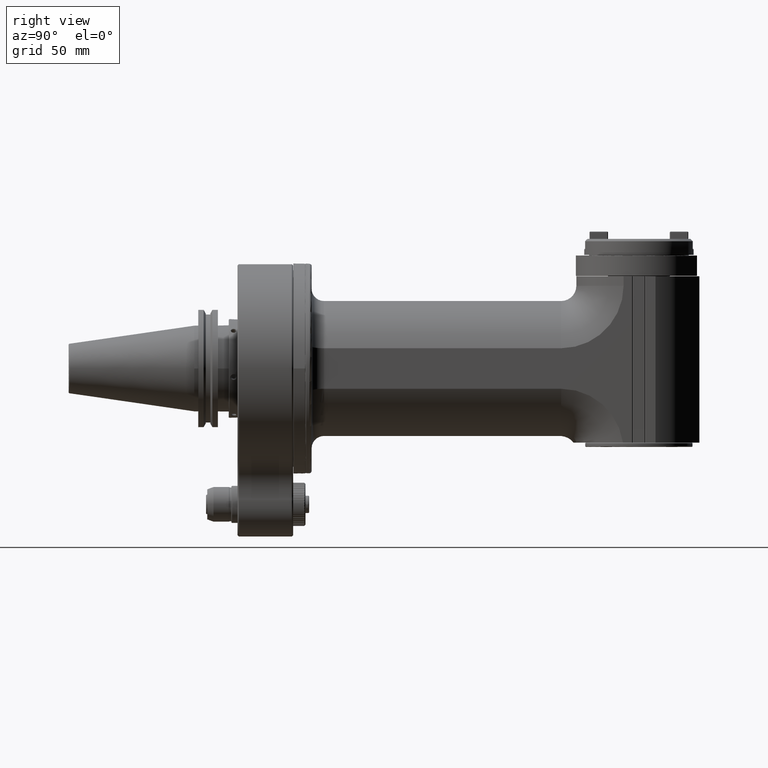
[diagram: clean part render]
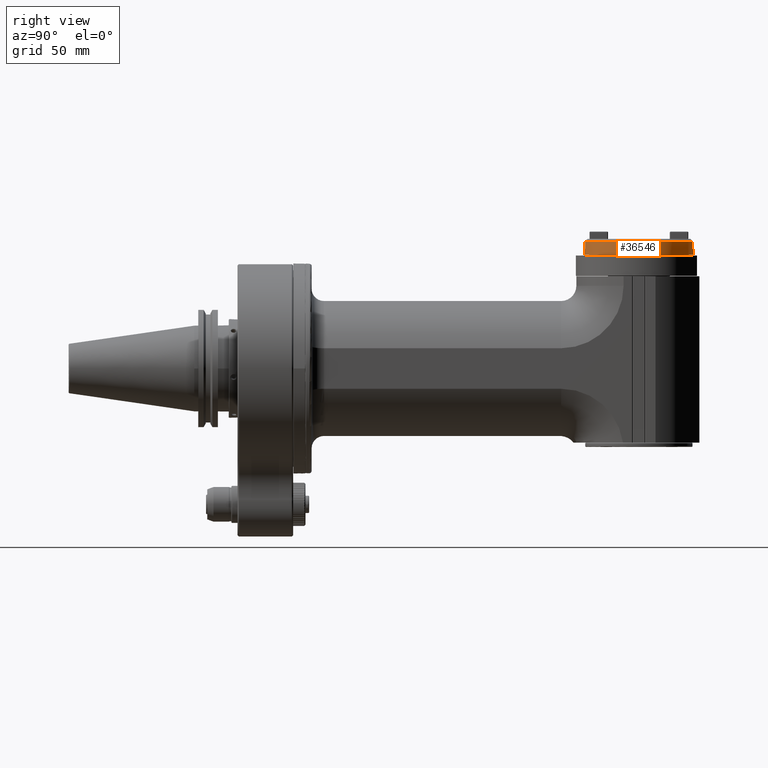
[diagram: same view with one face highlighted and labeled with its STEP entity id]
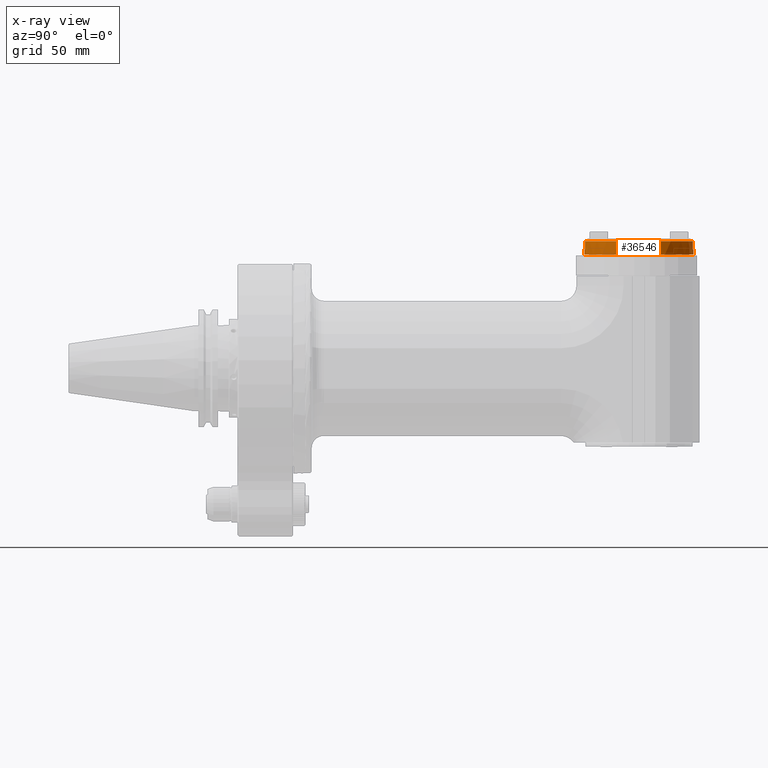
[diagram: x-ray of the same camera — body ghosted, the highlighted face saturated]
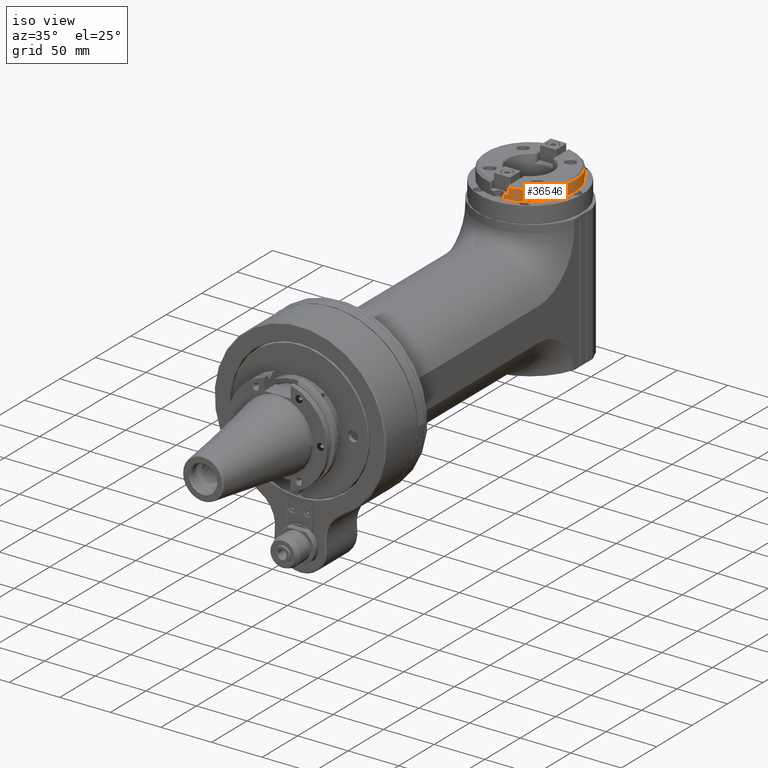
[diagram: same view with one face highlighted and labeled with its STEP entity id]
A machine part, right view. The second image highlights one B-rep face of the part: STEP entity #36546.
The next image is the same camera in x-ray: the body ghosted, the highlighted face saturated — about 0% of this face is hidden behind the body in this view.
A second angle (iso view) of the same face is appended — the face is thin or edge-on in the first view.
In plain terms, the highlighted cylindrical surface (partial cylindrical patch) has radius 44.5 mm, axis along (0, -0, -1).
Its self-contained STEP definition (entity closure, byte-faithful):
#2994=LINE('',#58843,#6284);
#2996=LINE('',#58859,#6286);
#2997=LINE('',#58864,#6287);
#2998=LINE('',#58868,#6288);
#6284=VECTOR('',#45735,0.177165354330709);
#6286=VECTOR('',#45741,0.177165354330709);
#6287=VECTOR('',#45746,0.255905511811024);
#6288=VECTOR('',#45749,0.255905511811024);
#7860=CYLINDRICAL_SURFACE('',#39031,1.75196850393701);
#9340=FACE_OUTER_BOUND('',#11563,.T.);
#11563=EDGE_LOOP('',(#28040,#28041,#28042,#28043,#28044,#28045,#28046,#28047));
#13259=CIRCLE('',#39032,1.75196850393701);
#13260=CIRCLE('',#39033,1.75196850393701);
#13261=CIRCLE('',#39034,1.75196850393701);
#13262=CIRCLE('',#39035,1.75196850393701);
#16015=VERTEX_POINT('',#58841);
#16016=VERTEX_POINT('',#58842);
#16019=VERTEX_POINT('',#58857);
#16020=VERTEX_POINT('',#58858);
#16021=VERTEX_POINT('',#58861);
#16022=VERTEX_POINT('',#58863);
#16023=VERTEX_POINT('',#58865);
#16024=VERTEX_POINT('',#58867);
#20349=EDGE_CURVE('',#16015,#16016,#2994,.T.);
#20354=EDGE_CURVE('',#16019,#16020,#2996,.T.);
#20355=EDGE_CURVE('',#16016,#16020,#13259,.T.);
#20356=EDGE_CURVE('',#16015,#16021,#13260,.T.);
#20357=EDGE_CURVE('',#16022,#16021,#2997,.T.);
#20358=EDGE_CURVE('',#16022,#16023,#13261,.T.);
#20359=EDGE_CURVE('',#16023,#16024,#2998,.T.);
#20360=EDGE_CURVE('',#16024,#16019,#13262,.T.);
#28040=ORIENTED_EDGE('',*,*,#20354,.T.);
#28041=ORIENTED_EDGE('',*,*,#20355,.F.);
#28042=ORIENTED_EDGE('',*,*,#20349,.F.);
#28043=ORIENTED_EDGE('',*,*,#20356,.T.);
#28044=ORIENTED_EDGE('',*,*,#20357,.F.);
#28045=ORIENTED_EDGE('',*,*,#20358,.T.);
#28046=ORIENTED_EDGE('',*,*,#20359,.T.);
#28047=ORIENTED_EDGE('',*,*,#20360,.T.);
#36546=ADVANCED_FACE('',(#9340),#7860,.T.);
#39031=AXIS2_PLACEMENT_3D('',#58856,#45739,#45740);
#39032=AXIS2_PLACEMENT_3D('',#58860,#45742,#45743);
#39033=AXIS2_PLACEMENT_3D('',#58862,#45744,#45745);
#39034=AXIS2_PLACEMENT_3D('',#58866,#45747,#45748);
#39035=AXIS2_PLACEMENT_3D('',#58869,#45750,#45751);
#45735=DIRECTION('',(0.,0.,-1.));
#45739=DIRECTION('center_axis',(0.,0.,-1.));
#45740=DIRECTION('ref_axis',(0.,-1.,0.));
#45741=DIRECTION('',(0.,0.,-1.));
#45742=DIRECTION('center_axis',(0.,0.,-1.));
#45743=DIRECTION('ref_axis',(0.0973896769489501,0.995246326707001,0.));
#45744=DIRECTION('center_axis',(0.,0.,-1.));
#45745=DIRECTION('ref_axis',(0.0973896769489501,0.995246326707001,0.));
#45746=DIRECTION('',(0.,0.,-1.));
#45747=DIRECTION('center_axis',(0.,0.,-1.));
#45748=DIRECTION('ref_axis',(0.201784940526397,0.979429853423285,0.));
#45749=DIRECTION('',(0.,0.,-1.));
#45750=DIRECTION('center_axis',(0.,0.,-1.));
#45751=DIRECTION('ref_axis',(0.201784940526397,-0.979429853423285,0.));
#58841=CARTESIAN_POINT('',(0.17062364662315,14.0664748637205,3.7992125984252));
#58842=CARTESIAN_POINT('',(0.17062364662315,14.0664748637205,3.62204724409449));
#58843=CARTESIAN_POINT('',(0.17062364662315,14.0664748637205,3.7992125984252));
#58856=CARTESIAN_POINT('Origin',(0.,12.3228346456693,4.45767716535433));
#58857=CARTESIAN_POINT('',(0.17062364662315,10.5791944276181,3.7992125984252));
#58858=CARTESIAN_POINT('',(0.17062364662315,10.5791944276181,3.62204724409449));
#58859=CARTESIAN_POINT('',(0.17062364662315,10.5791944276181,3.7992125984252));
#58860=CARTESIAN_POINT('Origin',(0.,12.3228346456693,3.62204724409449));
#58861=CARTESIAN_POINT('',(0.353520860370984,14.0387649006811,3.7992125984252));
#58862=CARTESIAN_POINT('Origin',(0.,12.3228346456693,3.7992125984252));
#58863=CARTESIAN_POINT('',(0.353520860370984,14.0387649006811,4.05511811023622));
#58864=CARTESIAN_POINT('',(0.353520860370984,14.0387649006811,4.05511811023622));
#58865=CARTESIAN_POINT('',(0.353520860370984,10.6069043906575,4.05511811023622));
#58866=CARTESIAN_POINT('Origin',(0.,12.3228346456693,4.05511811023622));
#58867=CARTESIAN_POINT('',(0.353520860370984,10.6069043906575,3.7992125984252));
#58868=CARTESIAN_POINT('',(0.353520860370984,10.6069043906575,4.05511811023622));
#58869=CARTESIAN_POINT('Origin',(0.,12.3228346456693,3.7992125984252));